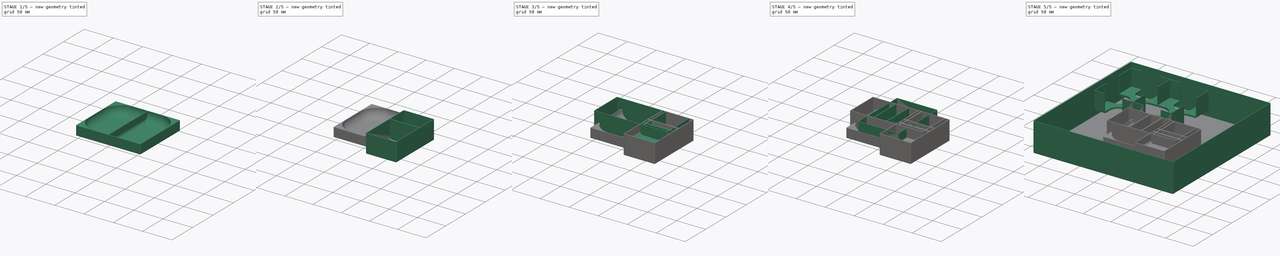
[diagram: build sequence overview — one tinted view per stage of 5, left to right]
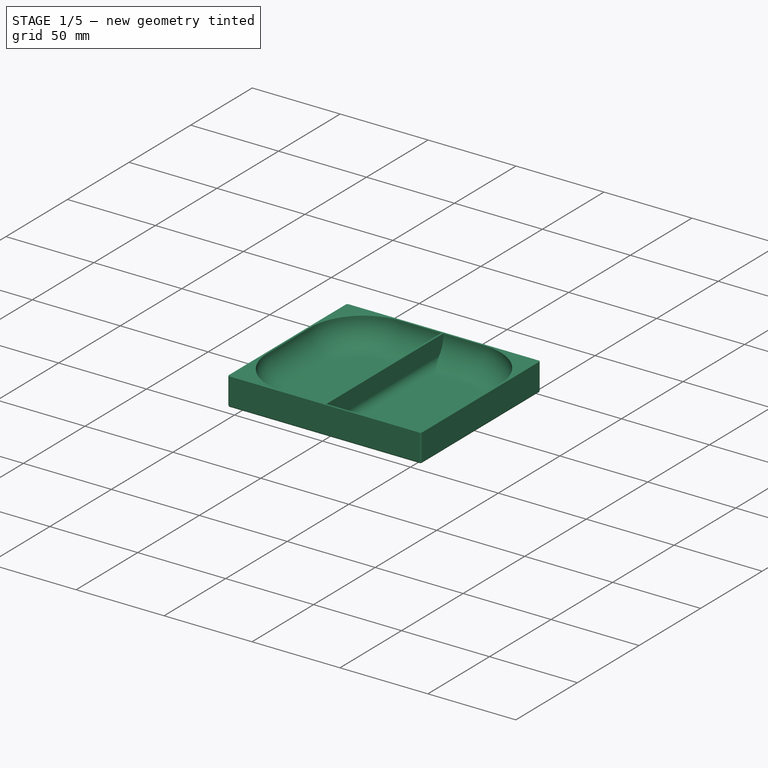
[diagram: stage 1 of 5 — iso view after this stage's code; geometry added in this stage tinted green]
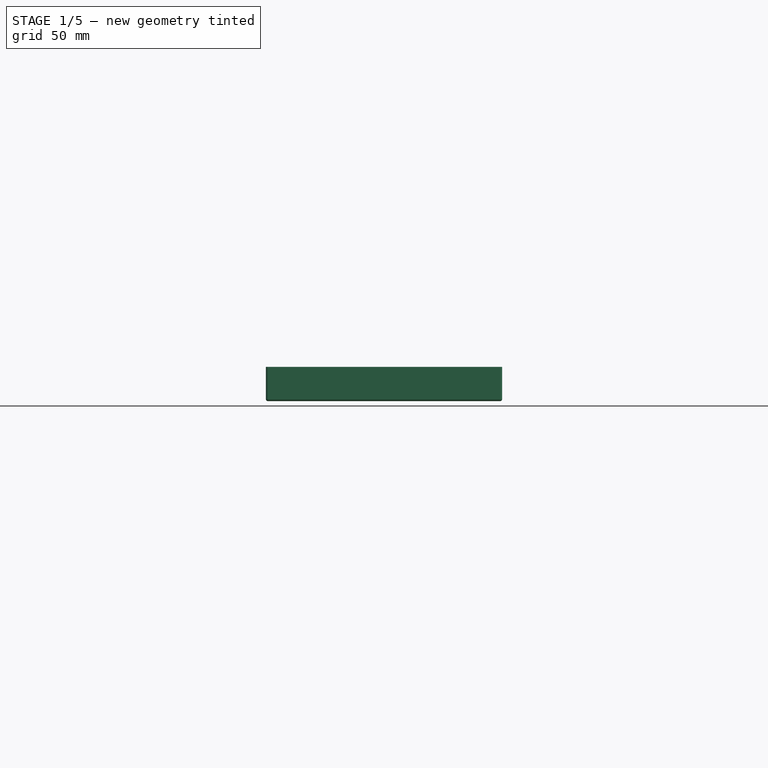
[diagram: stage 1 of 5 — front view after this stage's code; geometry added in this stage tinted green]
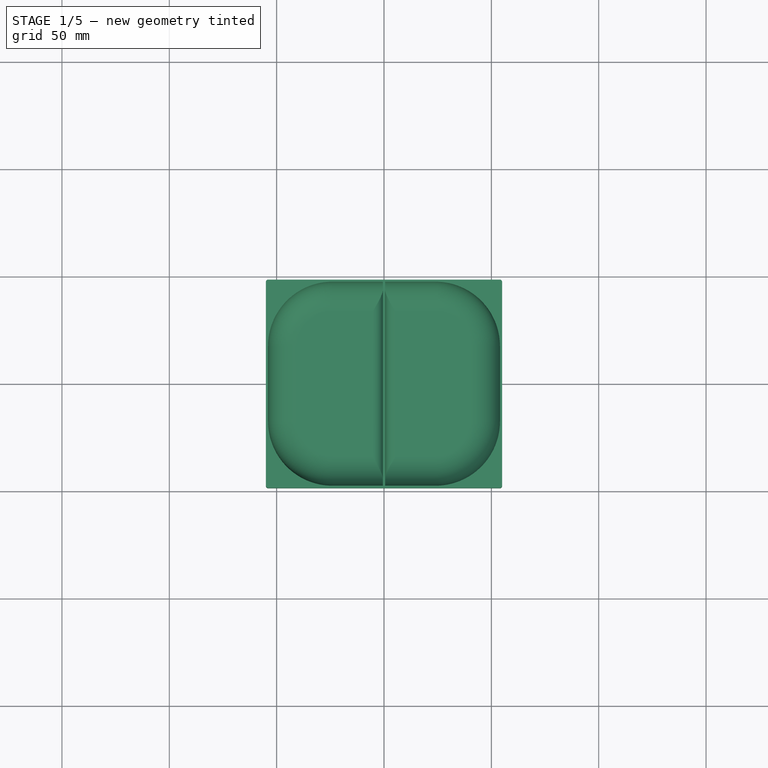
[diagram: stage 1 of 5 — top view after this stage's code; geometry added in this stage tinted green]
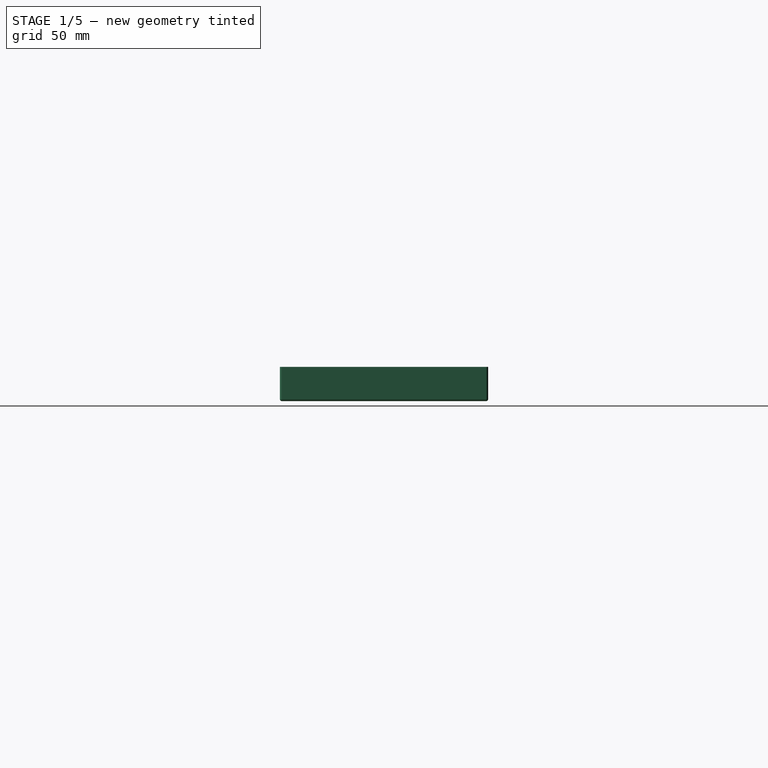
[diagram: stage 1 of 5 — right view after this stage's code; geometry added in this stage tinted green]
FCSTD DOCUMENT  (FreeCAD 0.20R29177 (Git))
Label: Horizons
License: All rights reserved
LicenseURL: http://en.wikipedia.org/wiki/All_rights_reserved
objects: Sketcher::SketchObject×16, PartDesign::Pad×15, PartDesign::Body×15, PartDesign::Plane×9, PartDesign::FeatureBase×9, PartDesign::Fillet×7, PartDesign::Thickness×6, App::Part×3, PartDesign::Pocket×1, PartDesign::Boolean×1, PartDesign::Mirrored×1
note: 109 computed .brp shape members not serialized (recipe doc carries the construction recipe); baked Part::Feature solids carry a one-line shape summary decoded from their .brp

FEATURE [PartDesign::Body] Body009  label="Energy-Thin"
  BaseFeature = -> Body007
  Group = -> [Clone004,DatumPlane005,Sketch011,Pad010]
  Origin = -> Origin012
  Placement = pos=(55,0,0) rot=(0,0,1;0rad)
  Tip = -> Pad010
FEATURE [Sketcher::SketchObject] Sketch012
  FullyConstrained = true
  MapMode = 5
  Support = -> [XY_Plane014]
  sketch-geometry (4):
    g0: LineSegment StartX=-54 StartY=47.5 StartZ=0 EndX=54 EndY=47.5 EndZ=0
    g1: LineSegment StartX=54 StartY=47.5 StartZ=0 EndX=54 EndY=-47.5 EndZ=0
    g2: LineSegment StartX=54 StartY=-47.5 StartZ=0 EndX=-54 EndY=-47.5 EndZ=0
    g3: LineSegment StartX=-54 StartY=-47.5 StartZ=0 EndX=-54 EndY=47.5 EndZ=0
  constraints (10):
    c: Coincident(g0,g1)
    c: Coincident(g1,g2)
    c: Coincident(g2,g3)
    c: Coincident(g3,g0)
    c: Horizontal(g2)
    c: Vertical(g1)
    c: DistanceX(g0,g0) = 108
    c: DistanceY(g3,g3) = 95
    c: Symmetric(g0,g0,g-2)
    c: Symmetric(g0,g2,g-1)
FEATURE [PartDesign::Pad] Pad011
  Direction = (0,0,1)
  Length = 15
  Length2 = 10
  Profile = -> Sketch012
  ReferenceAxis = -> Sketch012 [N_Axis]
  Type = 0
FEATURE [PartDesign::Thickness] Thickness005
  Base = -> Pad011 [Face6]
  BaseFeature = -> Pad011
  Intersection = false
  Join = 0
  Mode = 0
  SupportTransform = false
  Value = 1
FEATURE [PartDesign::Fillet] Fillet004
  Base = -> Thickness005 [Edge2,Edge5,Edge8,Edge1]
  BaseFeature = -> Thickness005
  Radius = 30
  SupportTransform = false
  UseAllEdges = false
FEATURE [PartDesign::Fillet] Fillet005
  Base = -> Fillet004 [Face2]
  BaseFeature = -> Fillet004
  Radius = 14
  SupportTransform = false
  UseAllEdges = false
FEATURE [PartDesign::FeatureBase] Clone007
  BaseFeature = -> Fillet005
FEATURE [PartDesign::Body] Body013  label="EnergyTray"
  BaseFeature = -> Fillet005
  Group = -> [Clone007,DatumPlane007,Sketch014,Pad013]
  Origin = -> Origin016
  Placement = pos=(70,77,0) rot=(0,0,1;0rad)
  Tip = -> Pad013
FEATURE [PartDesign::FeatureBase] Clone008
  BaseFeature = -> Thickness005
FEATURE [PartDesign::Plane] DatumPlane008
  Length = 124.832
  MapMode = 5
  Placement = pos=(0,47.5,0) rot=(1,0,0;1.5708rad)
  ResizeMode = 0
  Support = -> [Clone008]
  Width = 64.8324
FEATURE [Sketcher::SketchObject] Sketch015
  FullyConstrained = true
  MapMode = 5
  Placement = pos=(0,47.5,0) rot=(1,0,0;1.5708rad)
  Support = -> [DatumPlane008]
  sketch-geometry (4):
    g0: LineSegment StartX=-0.5 StartY=15 StartZ=0 EndX=0.5 EndY=15 EndZ=0
    g1: LineSegment StartX=0.5 StartY=15 StartZ=0 EndX=0.5 EndY=0 EndZ=0
    g2: LineSegment StartX=0.5 StartY=0 StartZ=0 EndX=-0.5 EndY=0 EndZ=0
    g3: LineSegment StartX=-0.5 StartY=0 StartZ=0 EndX=-0.5 EndY=15 EndZ=0
  constraints (11):
    c: Coincident(g0,g1)
    c: Coincident(g1,g2)
    c: Coincident(g2,g3)
    c: Coincident(g3,g0)
    c: Horizontal(g0)
    c: Vertical(g1)
    c: Vertical(g3)
    c: PointOnObject(g1,g-1)
    c: Symmetric(g2,g1,g-2)
    c: DistanceX(g0,g0) = 1
    c: DistanceY(g3,g3) = 15
FEATURE [PartDesign::Pad] Pad014
  BaseFeature = -> Clone008
  Direction = (0,-1,2e-16)
  Length = 10
  Length2 = 10
  Profile = -> Sketch015
  ReferenceAxis = -> Sketch015 [N_Axis]
  Type = 3
  UpToFace = -> Clone008 [Face3]
FEATURE [PartDesign::Fillet] Fillet006
  Base = -> Pad014 [Face2,Face20]
  BaseFeature = -> Pad014
  Radius = 5
  SupportTransform = false
  UseAllEdges = false
FEATURE [PartDesign::Body] Body014  label="BuildingsTray"
  Group = -> [Clone008,DatumPlane008,Sketch015,Pad014,Fillet006]
  Origin = -> Origin017
  Placement = pos=(70,77,16) rot=(0,0,1;0rad)
  Tip = -> Fillet006
FEATURE [App::Part] Part002  label="For Tokens"
  Group = -> [Body005,Body006,Body007,Body008,Body009,Body010,Body011,Body012,Body013,Body014]
  Origin = -> Origin007
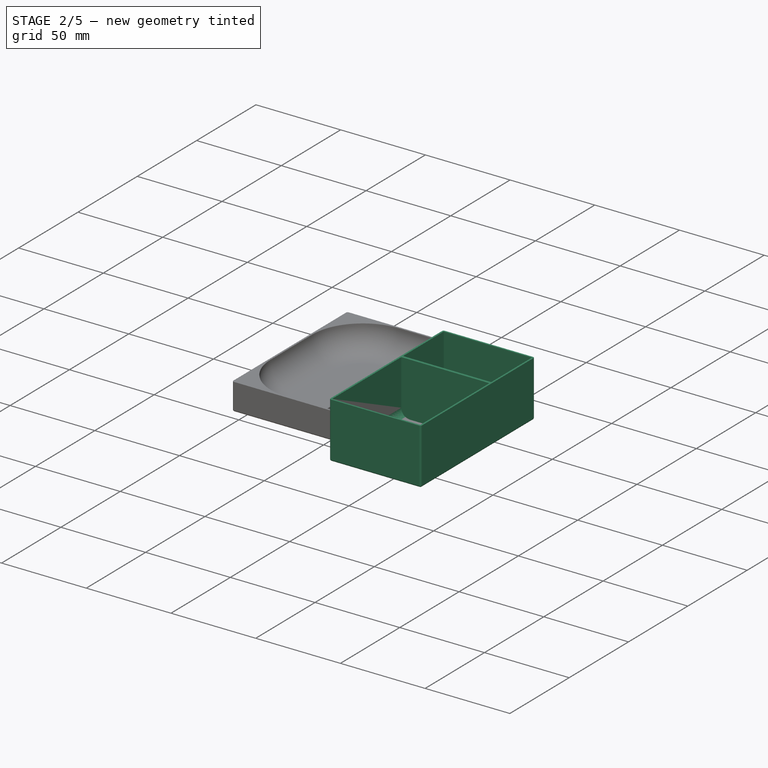
[diagram: stage 2 of 5 — iso view after this stage's code; geometry added in this stage tinted green]
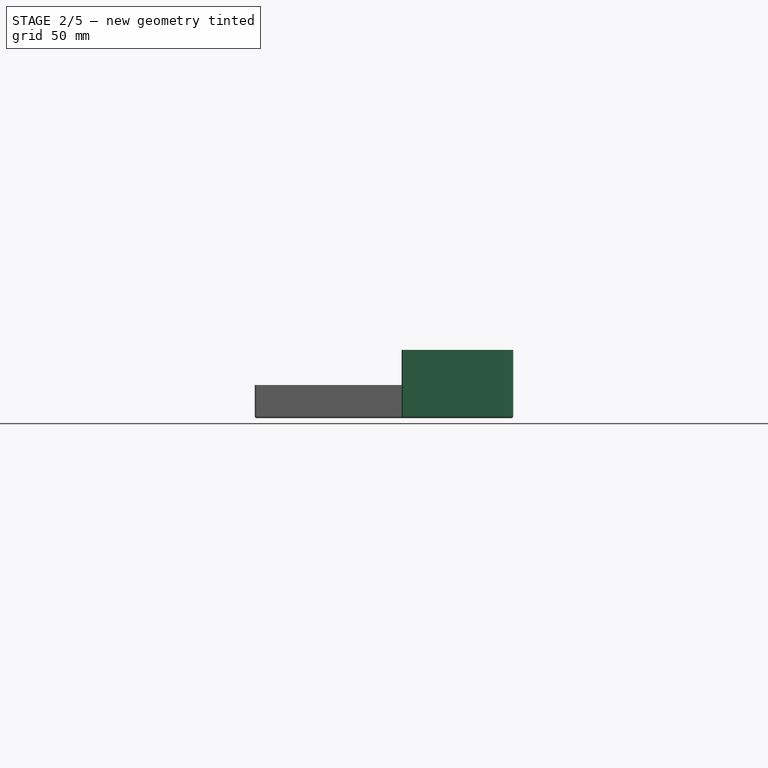
[diagram: stage 2 of 5 — front view after this stage's code; geometry added in this stage tinted green]
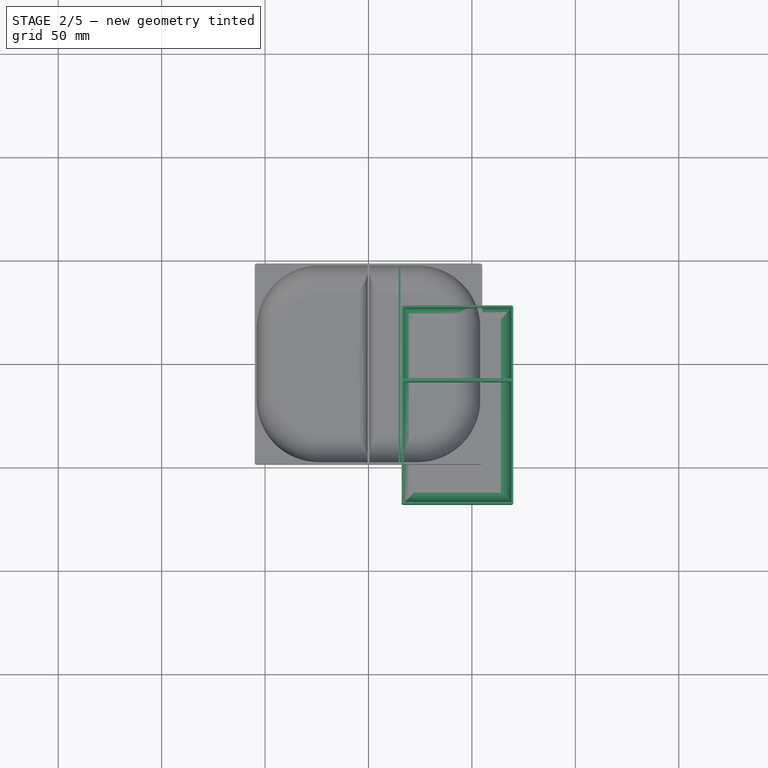
[diagram: stage 2 of 5 — top view after this stage's code; geometry added in this stage tinted green]
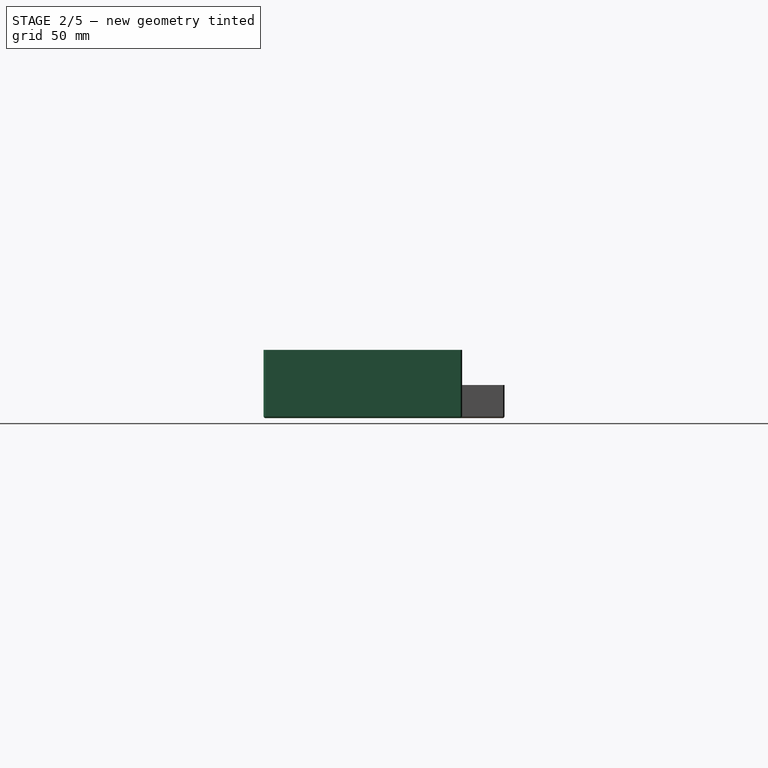
[diagram: stage 2 of 5 — right view after this stage's code; geometry added in this stage tinted green]
FEATURE [PartDesign::Body] Body006  label="Players"
  Group = -> [Sketch006,Pad005,Thickness003,DatumPlane002,Sketch007,Pad006,Mirrored,Fillet001]
  Origin = -> Origin009
  Placement = pos=(63,-97,0) rot=(0,0,1;0rad)
  Tip = -> Fillet001
FEATURE [Sketcher::SketchObject] Sketch008
  FullyConstrained = true
  MapMode = 5
  Support = -> [XY_Plane010]
  sketch-geometry (4):
    g0: LineSegment StartX=-26 StartY=47 StartZ=0 EndX=26 EndY=47 EndZ=0
    g1: LineSegment StartX=26 StartY=47 StartZ=0 EndX=26 EndY=-47 EndZ=0
    g2: LineSegment StartX=26 StartY=-47 StartZ=0 EndX=-26 EndY=-47 EndZ=0
    g3: LineSegment StartX=-26 StartY=-47 StartZ=0 EndX=-26 EndY=47 EndZ=0
  constraints (10):
    c: Coincident(g0,g1)
    c: Coincident(g1,g2)
    c: Coincident(g2,g3)
    c: Coincident(g3,g0)
    c: Horizontal(g2)
    c: Vertical(g1)
    c: Symmetric(g0,g0,g-2)
    c: Symmetric(g0,g2,g-1)
    c: DistanceX(g0,g0) = 52
    c: DistanceY(g3,g3) = 94
FEATURE [PartDesign::Pad] Pad007
  Direction = (0,0,1)
  Length = 32
  Length2 = 10
  Profile = -> Sketch008
  ReferenceAxis = -> Sketch008 [N_Axis]
  Type = 0
FEATURE [PartDesign::Thickness] Thickness004
  Base = -> Pad007 [Face6]
  BaseFeature = -> Pad007
  Intersection = false
  Join = 0
  Mode = 0
  SupportTransform = false
  Value = 1
FEATURE [PartDesign::Fillet] Fillet002
  Base = -> Thickness004 [Face5,Face17]
  BaseFeature = -> Thickness004
  Radius = 5
  SupportTransform = false
  UseAllEdges = false
FEATURE [PartDesign::FeatureBase] Clone004
  BaseFeature = -> Body007
  Placement = pos=(43,-20,0) rot=(0,0,1;0rad)
FEATURE [PartDesign::Body] Body010  label="Buildings-Thin"
  BaseFeature = -> Body007
  Group = -> [Clone005,DatumPlane004,Sketch010,Pad009]
  Origin = -> Origin013
  Placement = pos=(55,97,0) rot=(0,0,1;0rad)
  Tip = -> Pad009
FEATURE [PartDesign::Plane] DatumPlane005
  Length = 110.795
  MapMode = 5
  Placement = pos=(17,-20,0) rot=(0.57735,0.57735,0.57735;2.0944rad)
  ResizeMode = 0
  Support = -> [Clone004]
  Width = 71.7946
FEATURE [Sketcher::SketchObject] Sketch011
  AttachmentOffset = pos=(12,0,0) rot=(0,0,1;0rad)
  FullyConstrained = true
  MapMode = 5
  Placement = pos=(17,-8,0) rot=(0.57735,0.57735,0.57735;2.0944rad)
  Support = -> [DatumPlane005]
  sketch-geometry (4):
    g0: LineSegment StartX=-0.75 StartY=32 StartZ=0 EndX=0.75 EndY=32 EndZ=0
    g1: LineSegment StartX=0.75 StartY=32 StartZ=0 EndX=0.75 EndY=0 EndZ=0
    g2: LineSegment StartX=0.75 StartY=0 StartZ=0 EndX=-0.75 EndY=0 EndZ=0
    g3: LineSegment StartX=-0.75 StartY=0 StartZ=0 EndX=-0.75 EndY=32 EndZ=0
  constraints (11):
    c: Coincident(g0,g1)
    c: Coincident(g1,g2)
    c: Coincident(g2,g3)
    c: Coincident(g3,g0)
    c: Horizontal(g0)
    c: Vertical(g1)
    c: Vertical(g3)
    c: PointOnObject(g1,g-1)
    c: DistanceX(g0,g0) = 1.5
    c: DistanceY(g1,g1) = 32
    c: Symmetric(g2,g1,g-2)
FEATURE [PartDesign::Pad] Pad010
  BaseFeature = -> Clone004
  Direction = (1,0,0)
  Length = 10
  Length2 = 10
  Placement = pos=(43,-20,0) rot=(0,0,1;0rad)
  Profile = -> Sketch011
  ReferenceAxis = -> Sketch011 [N_Axis]
  Type = 3
  UpToFace = -> Clone004 [Face5]
FEATURE [PartDesign::Body] Body011  label="Dahan"
  Group = -> [Sketch012,Pad011,Thickness005,Fillet004,Fillet005]
  Origin = -> Origin014
  Placement = pos=(70,-20,0) rot=(0,0,1;0rad)
  Tip = -> Fillet005
FEATURE [PartDesign::FeatureBase] Clone006
  BaseFeature = -> Fillet005
FEATURE [PartDesign::Plane] DatumPlane006
  Length = 124.832
  MapMode = 5
  Placement = pos=(0,47.5,0) rot=(1,0,0;1.5708rad)
  ResizeMode = 0
  Support = -> [Clone006]
  Width = 64.8324
FEATURE [Sketcher::SketchObject] Sketch013
  AttachmentOffset = pos=(15,0,0) rot=(0,0,1;0rad)
  FullyConstrained = true
  MapMode = 5
  Placement = pos=(15,47.5,0) rot=(1,0,0;1.5708rad)
  Support = -> [DatumPlane006]
  sketch-geometry (4):
    g0: LineSegment StartX=-0.5 StartY=15 StartZ=0 EndX=0.5 EndY=15 EndZ=0
    g1: LineSegment StartX=0.5 StartY=15 StartZ=0 EndX=0.5 EndY=0 EndZ=0
    g2: LineSegment StartX=0.5 StartY=0 StartZ=0 EndX=-0.5 EndY=0 EndZ=0
    g3: LineSegment StartX=-0.5 StartY=0 StartZ=0 EndX=-0.5 EndY=15 EndZ=0
  constraints (11):
    c: Coincident(g0,g1)
    c: Coincident(g1,g2)
    c: Coincident(g2,g3)
    c: Coincident(g3,g0)
    c: Horizontal(g0)
    c: Vertical(g1)
    c: Vertical(g3)
    c: PointOnObject(g1,g-1)
    c: Symmetric(g2,g1,g-2)
    c: DistanceX(g2,g2) = 1
    c: DistanceY(g3,g3) = 15
FEATURE [PartDesign::Pad] Pad012
  BaseFeature = -> Clone006
  Direction = (0,-1,2e-16)
  Length = 10
  Length2 = 10
  Profile = -> Sketch013
  ReferenceAxis = -> Sketch013 [N_Axis]
  Type = 3
  UpToFace = -> Clone006 [Face20]
FEATURE [PartDesign::Body] Body012  label="Explorers"
  BaseFeature = -> Fillet005
  Group = -> [Clone006,DatumPlane006,Sketch013,Pad012]
  Origin = -> Origin015
  Placement = pos=(70,-20,16) rot=(0,0,1;0rad)
  Tip = -> Pad012
FEATURE [PartDesign::Plane] DatumPlane007
  Length = 124.832
  MapMode = 5
  Placement = pos=(0,47.5,0) rot=(1,0,0;1.5708rad)
  ResizeMode = 0
  Support = -> [Clone007]
  Width = 64.8324
FEATURE [Sketcher::SketchObject] Sketch014
  FullyConstrained = true
  MapMode = 5
  Placement = pos=(0,47.5,0) rot=(1,0,0;1.5708rad)
  Support = -> [DatumPlane007]
  sketch-geometry (4):
    g0: LineSegment StartX=-0.5 StartY=0 StartZ=0 EndX=0.5 EndY=0 EndZ=0
    g1: LineSegment StartX=0.5 StartY=0 StartZ=0 EndX=0.5 EndY=15 EndZ=0
    g2: LineSegment StartX=0.5 StartY=15 StartZ=0 EndX=-0.5 EndY=15 EndZ=0
    g3: LineSegment StartX=-0.5 StartY=15 StartZ=0 EndX=-0.5 EndY=0 EndZ=0
  constraints (11):
    c: Coincident(g0,g1)
    c: Coincident(g1,g2)
    c: Coincident(g2,g3)
    c: Coincident(g3,g0)
    c: Horizontal(g2)
    c: Vertical(g1)
    c: Vertical(g3)
    c: PointOnObject(g0,g-1)
    c: Symmetric(g0,g0,g-2)
    c: DistanceX(g0,g0) = 1
    c: DistanceY(g3,g3) = 15
FEATURE [PartDesign::Pad] Pad013
  BaseFeature = -> Clone007
  Direction = (0,-1,2e-16)
  Length = 10
  Length2 = 10
  Profile = -> Sketch014
  ReferenceAxis = -> Sketch014 [N_Axis]
  Type = 3
  UpToFace = -> Clone007 [Face12]
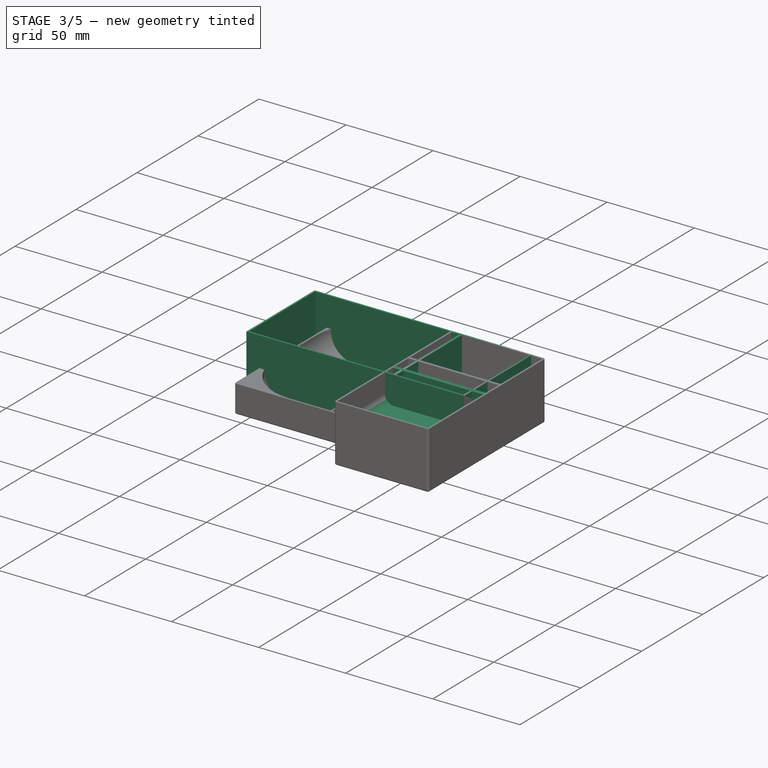
[diagram: stage 3 of 5 — iso view after this stage's code; geometry added in this stage tinted green]
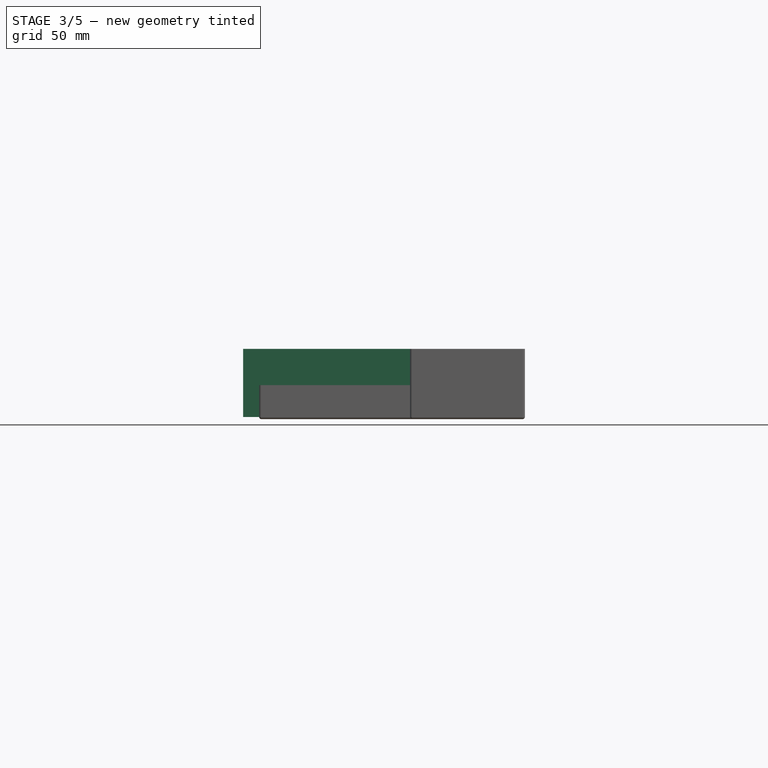
[diagram: stage 3 of 5 — front view after this stage's code; geometry added in this stage tinted green]
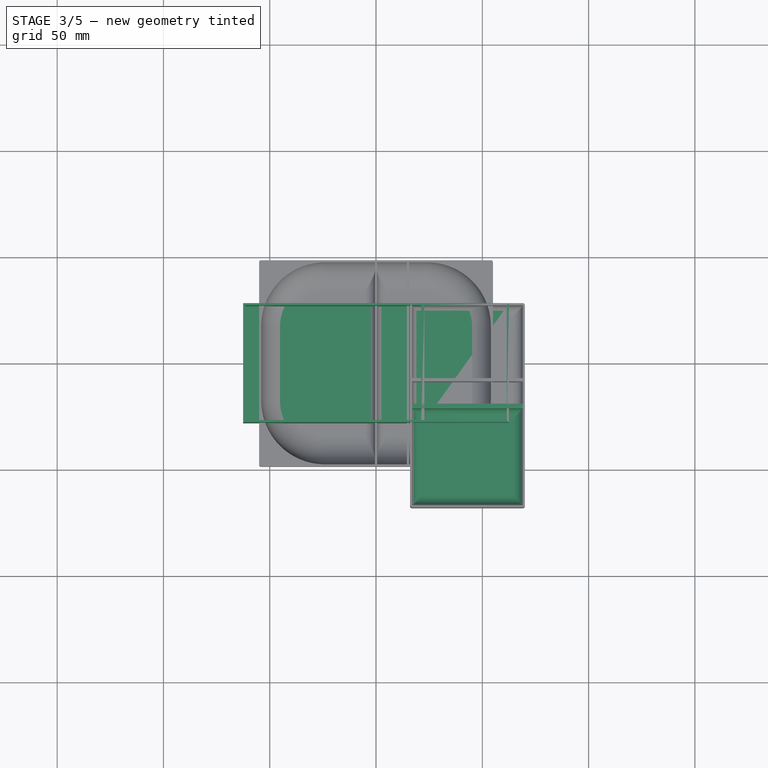
[diagram: stage 3 of 5 — top view after this stage's code; geometry added in this stage tinted green]
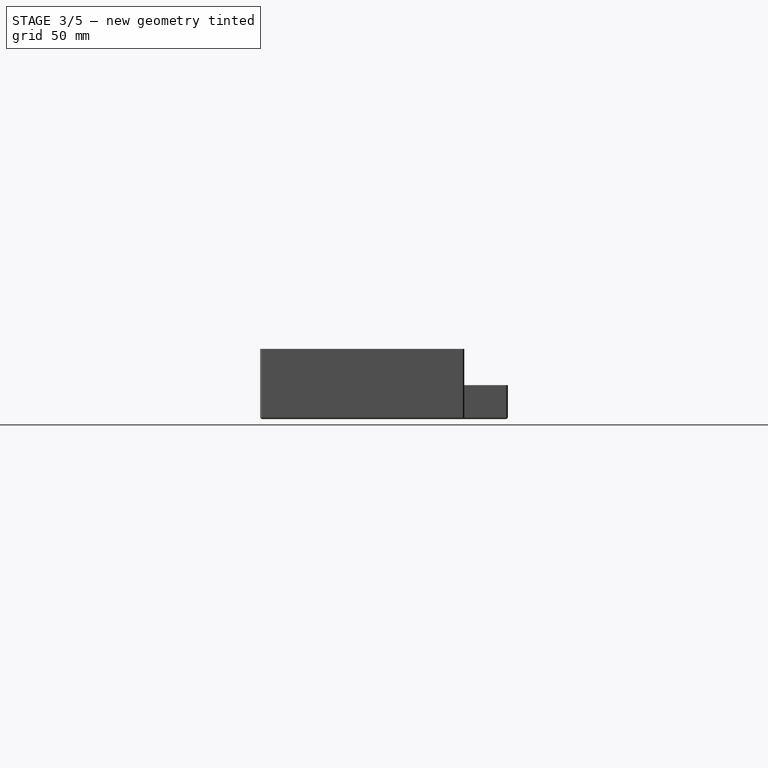
[diagram: stage 3 of 5 — right view after this stage's code; geometry added in this stage tinted green]
FEATURE [PartDesign::Body] Body005  label="Blight/Fear"
  Group = -> [Sketch004,Pad003,Thickness002,DatumPlane001,Sketch005,Pad004,Fillet]
  Origin = -> Origin008
  Placement = pos=(-63,-97,0) rot=(0,0,1;0rad)
  Tip = -> Fillet
FEATURE [Sketcher::SketchObject] Sketch006
  FullyConstrained = true
  MapMode = 5
  Support = -> [XY_Plane009]
  sketch-geometry (4):
    g0: LineSegment StartX=-62.5 StartY=28 StartZ=0 EndX=62.5 EndY=28 EndZ=0
    g1: LineSegment StartX=62.5 StartY=28 StartZ=0 EndX=62.5 EndY=-28 EndZ=0
    g2: LineSegment StartX=62.5 StartY=-28 StartZ=0 EndX=-62.5 EndY=-28 EndZ=0
    g3: LineSegment StartX=-62.5 StartY=-28 StartZ=0 EndX=-62.5 EndY=28 EndZ=0
  constraints (10):
    c: Coincident(g0,g1)
    c: Coincident(g1,g2)
    c: Coincident(g2,g3)
    c: Coincident(g3,g0)
    c: Horizontal(g2)
    c: Vertical(g1)
    c: DistanceY(g3,g3) = 56
    c: DistanceX(g0,g0) = 125
    c: Symmetric(g0,g0,g-2)
    c: Symmetric(g0,g2,g-1)
FEATURE [PartDesign::Pad] Pad005
  Direction = (0,0,1)
  Length = 32
  Length2 = 10
  Profile = -> Sketch006
  ReferenceAxis = -> Sketch006 [N_Axis]
  Type = 0
FEATURE [PartDesign::Thickness] Thickness003
  Base = -> Pad005 [Face6]
  BaseFeature = -> Pad005
  Intersection = false
  Join = 0
  Mode = 0
  Reversed = true
  SupportTransform = false
  Value = 1
FEATURE [PartDesign::Plane] DatumPlane002
  Length = 141.882
  MapMode = 5
  Placement = pos=(0,27,0) rot=(1,0,0;1.5708rad)
  ResizeMode = 0
  Support = -> [Thickness003]
  Width = 73.8819
FEATURE [Sketcher::SketchObject] Sketch007
  AttachmentOffset = pos=(22,0,0) rot=(0,0,1;0rad)
  FullyConstrained = true
  MapMode = 5
  Placement = pos=(22,27,0) rot=(1,0,0;1.5708rad)
  Support = -> [DatumPlane002]
  sketch-geometry (4):
    g0: LineSegment StartX=-0.75 StartY=32 StartZ=0 EndX=0.75 EndY=32 EndZ=0
    g1: LineSegment StartX=0.75 StartY=32 StartZ=0 EndX=0.75 EndY=0 EndZ=0
    g2: LineSegment StartX=0.75 StartY=0 StartZ=0 EndX=-0.75 EndY=0 EndZ=0
    g3: LineSegment StartX=-0.75 StartY=0 StartZ=0 EndX=-0.75 EndY=32 EndZ=0
  constraints (11):
    c: Coincident(g0,g1)
    c: Coincident(g1,g2)
    c: Coincident(g2,g3)
    c: Coincident(g3,g0)
    c: Horizontal(g2)
    c: Vertical(g1)
    c: Vertical(g3)
    c: PointOnObject(g1,g-1)
    c: DistanceY(g3,g3) = 32
    c: DistanceX(g0,g0) = 1.5
    c: Symmetric(g0,g0,g-2)
FEATURE [PartDesign::Pad] Pad006
  BaseFeature = -> Thickness003
  Direction = (0,-1,2e-16)
  Length = 10
  Length2 = 10
  Profile = -> Sketch007
  ReferenceAxis = -> Sketch007 [N_Axis]
  Type = 3
  UpToFace = -> Thickness003 [Face9]
FEATURE [PartDesign::Body] Body007  label="Dahan-Thin"
  Group = -> [Sketch008,Pad007,Thickness004,Fillet002]
  Origin = -> Origin010
  Placement = pos=(43,-20,0) rot=(0,0,1;0rad)
  Tip = -> Fillet002
FEATURE [PartDesign::FeatureBase] Clone003
  BaseFeature = -> Body007
  Placement = pos=(43,-20,0) rot=(0,0,1;0rad)
FEATURE [PartDesign::FeatureBase] Clone005
  BaseFeature = -> Body007
  Placement = pos=(43,-20,0) rot=(0,0,1;0rad)
FEATURE [PartDesign::Plane] DatumPlane003
  Length = 110.795
  MapMode = 5
  Placement = pos=(17,-20,0) rot=(0.57735,0.57735,0.57735;2.0944rad)
  ResizeMode = 0
  Support = -> [Clone003]
  Width = 71.7946
FEATURE [Sketcher::SketchObject] Sketch009
  FullyConstrained = false
  MapMode = 5
  Placement = pos=(17,-20,0) rot=(0.57735,0.57735,0.57735;2.0944rad)
  Support = -> [DatumPlane003]
  sketch-geometry (7):
    g0: LineSegment StartX=-47 StartY=16 StartZ=0 EndX=-47 EndY=0 EndZ=0
    g1: LineSegment StartX=-47 StartY=0 StartZ=0 EndX=0 EndY=0 EndZ=0
    g2: LineSegment StartX=0 StartY=0 StartZ=0 EndX=0 EndY=16 EndZ=0
    g3: LineSegment StartX=-1.5 StartY=16 StartZ=0 EndX=-1.5 EndY=32 EndZ=0
    g4: LineSegment StartX=-1.5 StartY=32 StartZ=0 EndX=0 EndY=32 EndZ=0
    g5: LineSegment StartX=-1.5 StartY=16 StartZ=0 EndX=-47 EndY=16 EndZ=0
    g6: LineSegment StartX=0 StartY=32 StartZ=0 EndX=0 EndY=16 EndZ=0
  constraints (18):
    c: Coincident(g0,g1)
    c: Coincident(g1,g2)
    c: Horizontal(g1)
    c: Vertical(g0)
    c: Vertical(g2)
    c: DistanceY(g2,g2) = 16
    c: Coincident(g1,g-1)
    c: DistanceX(g0,g2) = 47
    c: Coincident(g3,g4)
    c: Horizontal(g4)
    c: Vertical(g3)
    c: DistanceY(g2,g4) = 16
    c: DistanceX(g4,g4) = 1.5
    c: Coincident(g5,g0)
    c: Horizontal(g5)
    c: Coincident(g6,g4)
    c: Coincident(g6,g2)
    c: Vertical(g6)
FEATURE [PartDesign::Pad] Pad008
  BaseFeature = -> Clone003
  Direction = (1,0,0)
  Length = 10
  Length2 = 10
  Placement = pos=(43,-20,0) rot=(0,0,1;0rad)
  Profile = -> Sketch009
  ReferenceAxis = -> Sketch009 [N_Axis]
  Type = 3
  UpToFace = -> Clone003 [Face5]
FEATURE [PartDesign::Fillet] Fillet003
  Base = -> Pad008 [Face24]
  BaseFeature = -> Pad008
  Placement = pos=(43,-20,0) rot=(0,0,1;0rad)
  Radius = 5
  SupportTransform = false
  UseAllEdges = false
FEATURE [PartDesign::Body] Body008  label="Explorers-Thin"
  BaseFeature = -> Body007
  Group = -> [Clone003,DatumPlane003,Sketch009,Pad008,Fillet003]
  Origin = -> Origin011
  Placement = pos=(0,97,0) rot=(0,0,1;0rad)
  Tip = -> Fillet003
FEATURE [PartDesign::Plane] DatumPlane004
  Length = 110.795
  MapMode = 5
  Placement = pos=(17,-20,0) rot=(0.57735,0.57735,0.57735;2.0944rad)
  ResizeMode = 0
  Support = -> [Clone005]
  Width = 71.7946
FEATURE [Sketcher::SketchObject] Sketch010
  FullyConstrained = true
  MapMode = 5
  Placement = pos=(17,-20,0) rot=(0.57735,0.57735,0.57735;2.0944rad)
  Support = -> [DatumPlane004]
  sketch-geometry (4):
    g0: LineSegment StartX=-0.75 StartY=32 StartZ=0 EndX=0.75 EndY=32 EndZ=0
    g1: LineSegment StartX=0.75 StartY=32 StartZ=0 EndX=0.75 EndY=0 EndZ=0
    g2: LineSegment StartX=0.75 StartY=0 StartZ=0 EndX=-0.75 EndY=0 EndZ=0
    g3: LineSegment StartX=-0.75 StartY=0 StartZ=0 EndX=-0.75 EndY=32 EndZ=0
  constraints (11):
    c: Coincident(g0,g1)
    c: Coincident(g1,g2)
    c: Coincident(g2,g3)
    c: Coincident(g3,g0)
    c: Horizontal(g0)
    c: Vertical(g1)
    c: Vertical(g3)
    c: PointOnObject(g1,g-1)
    c: DistanceY(g1,g1) = 32
    c: DistanceX(g0,g0) = 1.5
    c: Symmetric(g2,g1,g-2)
FEATURE [PartDesign::Pad] Pad009
  BaseFeature = -> Clone005
  Direction = (1,0,0)
  Length = 10
  Length2 = 10
  Placement = pos=(43,-20,0) rot=(0,0,1;0rad)
  Profile = -> Sketch010
  ReferenceAxis = -> Sketch010 [N_Axis]
  Type = 3
  UpToFace = -> Clone005 [Face5]
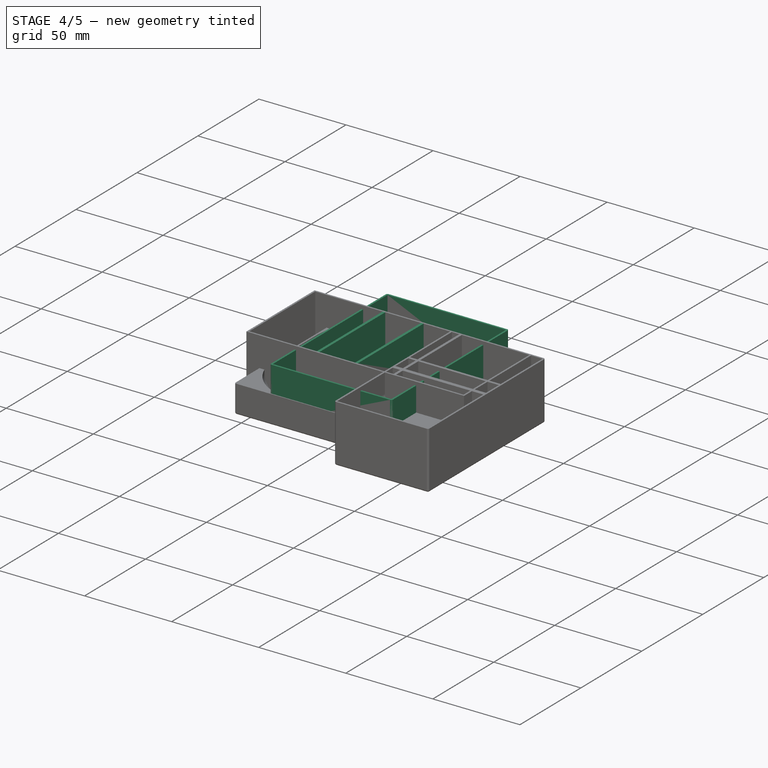
[diagram: stage 4 of 5 — iso view after this stage's code; geometry added in this stage tinted green]
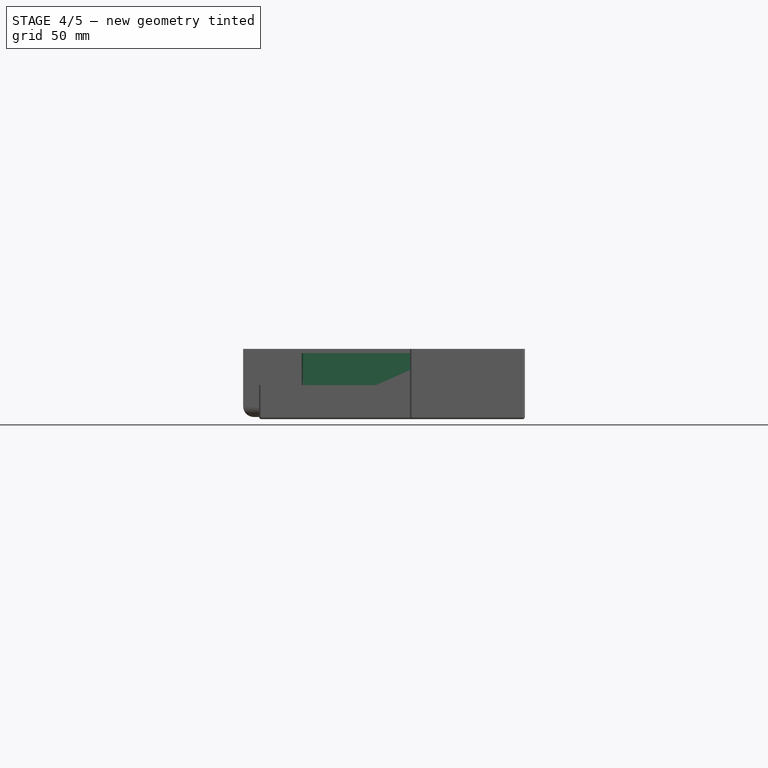
[diagram: stage 4 of 5 — front view after this stage's code; geometry added in this stage tinted green]
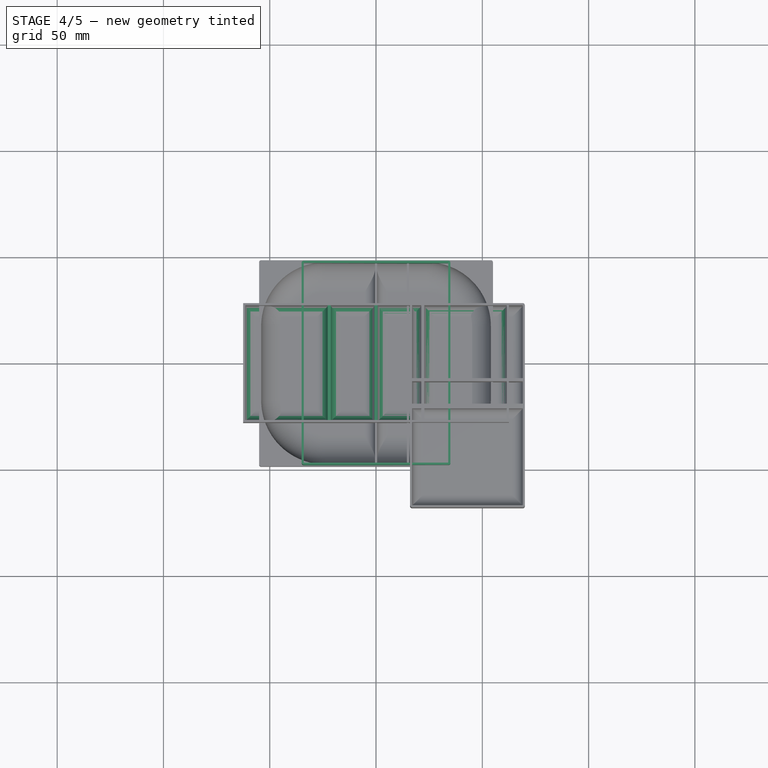
[diagram: stage 4 of 5 — top view after this stage's code; geometry added in this stage tinted green]
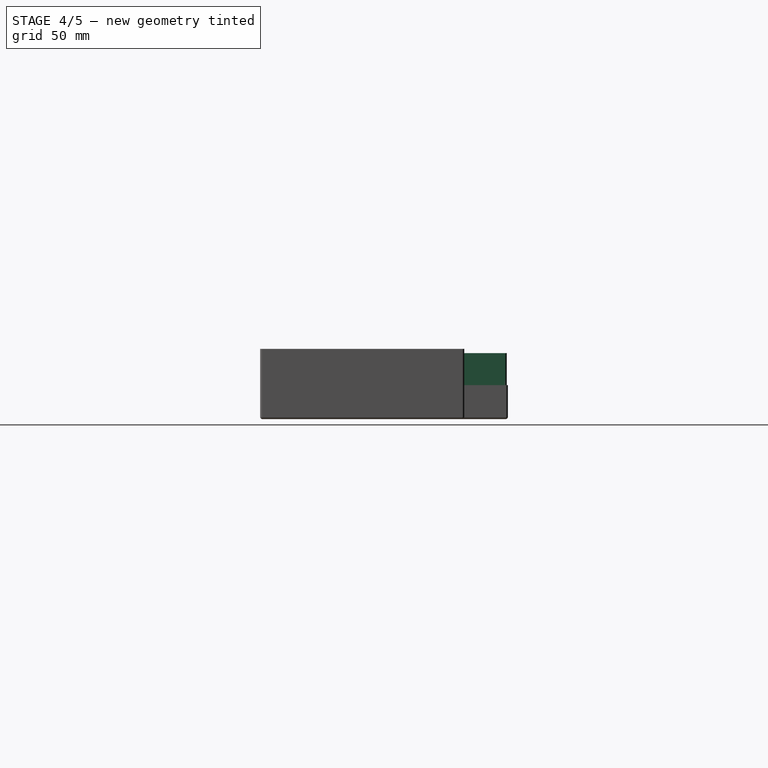
[diagram: stage 4 of 5 — right view after this stage's code; geometry added in this stage tinted green]
FEATURE [PartDesign::Body] Body  label="Box"
  Group = -> [Sketch,Pad,Thickness]
  Origin = -> Origin001
  Tip = -> Thickness
FEATURE [Sketcher::SketchObject] Sketch001
  FullyConstrained = true
  MapMode = 5
  Support = -> [XY_Plane003]
  sketch-geometry (4):
    g0: LineSegment StartX=-34 StartY=47 StartZ=0 EndX=34 EndY=47 EndZ=0
    g1: LineSegment StartX=34 StartY=47 StartZ=0 EndX=34 EndY=-47 EndZ=0
    g2: LineSegment StartX=34 StartY=-47 StartZ=0 EndX=-34 EndY=-47 EndZ=0
    g3: LineSegment StartX=-34 StartY=-47 StartZ=0 EndX=-34 EndY=47 EndZ=0
  constraints (10):
    c: Coincident(g0,g1)
    c: Coincident(g1,g2)
    c: Coincident(g2,g3)
    c: Coincident(g3,g0)
    c: Horizontal(g2)
    c: Vertical(g1)
    c: Symmetric(g0,g0,g-2)
    c: Symmetric(g0,g2,g-1)
    c: DistanceX(g0,g0) = 68
    c: DistanceY(g3,g3) = 94
FEATURE [PartDesign::Pad] Pad001
  Direction = (0,0,1)
  Length = 30
  Length2 = 10
  Profile = -> Sketch001
  ReferenceAxis = -> Sketch001 [N_Axis]
  Type = 0
FEATURE [PartDesign::Thickness] Thickness001
  Base = -> Pad001 [Face6]
  BaseFeature = -> Pad001
  Intersection = false
  Join = 0
  Mode = 0
  SupportTransform = false
  Value = 1
FEATURE [PartDesign::Body] Body004  label="Card Clone"
  BaseFeature = -> Body002
  Group = -> [Clone002]
  Origin = -> Origin006
  Placement = pos=(0,-97,-11) rot=(0,0,1;0rad)
  Tip = -> Clone002
FEATURE [App::Part] Part  label="Fit Example"
  Group = -> [Body,Body004]
  Origin = -> Origin
FEATURE [Sketcher::SketchObject] Sketch004
  FullyConstrained = true
  MapMode = 5
  Support = -> [XY_Plane008]
  sketch-geometry (4):
    g0: LineSegment StartX=-62.5 StartY=28 StartZ=0 EndX=62.5 EndY=28 EndZ=0
    g1: LineSegment StartX=62.5 StartY=28 StartZ=0 EndX=62.5 EndY=-28 EndZ=0
    g2: LineSegment StartX=62.5 StartY=-28 StartZ=0 EndX=-62.5 EndY=-28 EndZ=0
    g3: LineSegment StartX=-62.5 StartY=-28 StartZ=0 EndX=-62.5 EndY=28 EndZ=0
  constraints (10):
    c: Coincident(g0,g1)
    c: Coincident(g1,g2)
    c: Coincident(g2,g3)
    c: Coincident(g3,g0)
    c: Horizontal(g2)
    c: Vertical(g1)
    c: DistanceY(g3,g3) = 56
    c: DistanceX(g0,g0) = 125
    c: Symmetric(g0,g2,g-1)
    c: Symmetric(g0,g0,g-2)
FEATURE [PartDesign::Pad] Pad003
  Direction = (0,0,1)
  Length = 32
  Length2 = 10
  Profile = -> Sketch004
  ReferenceAxis = -> Sketch004 [N_Axis]
  Type = 0
FEATURE [PartDesign::Thickness] Thickness002
  Base = -> Pad003 [Face6]
  BaseFeature = -> Pad003
  Intersection = false
  Join = 0
  Mode = 0
  Reversed = true
  SupportTransform = false
  Value = 1
FEATURE [PartDesign::Plane] DatumPlane001
  Length = 141.882
  MapMode = 5
  Placement = pos=(0,27,0) rot=(1,0,0;1.5708rad)
  ResizeMode = 0
  Support = -> [Thickness002]
  Width = 73.8819
FEATURE [Sketcher::SketchObject] Sketch005
  FullyConstrained = true
  MapMode = 5
  Placement = pos=(0,27,0) rot=(1,0,0;1.5708rad)
  Support = -> [DatumPlane001]
  sketch-geometry (4):
    g0: LineSegment StartX=-0.75 StartY=32 StartZ=0 EndX=0.75 EndY=32 EndZ=0
    g1: LineSegment StartX=0.75 StartY=32 StartZ=0 EndX=0.75 EndY=0 EndZ=0
    g2: LineSegment StartX=0.75 StartY=0 StartZ=0 EndX=-0.75 EndY=-4e-16 EndZ=0
    g3: LineSegment StartX=-0.75 StartY=-4e-16 StartZ=0 EndX=-0.75 EndY=32 EndZ=0
  constraints (11):
    c: Coincident(g0,g1)
    c: Coincident(g1,g2)
    c: Coincident(g2,g3)
    c: Coincident(g3,g0)
    c: Horizontal(g0)
    c: Vertical(g1)
    c: Vertical(g3)
    c: PointOnObject(g1,g-1)
    c: Symmetric(g2,g1,g-2)
    c: DistanceY(g3,g3) = 32
    c: DistanceX(g0,g0) = 1.5
FEATURE [PartDesign::Pad] Pad004
  BaseFeature = -> Thickness002
  Direction = (0,-1,2e-16)
  Length = 10
  Length2 = 10
  Profile = -> Sketch005
  ReferenceAxis = -> Sketch005 [N_Axis]
  Type = 3
  UpToFace = -> Thickness002 [Face9]
FEATURE [PartDesign::Fillet] Fillet
  Base = -> Pad004 [Face18,Face15,Face4]
  BaseFeature = -> Pad004
  Radius = 5
  SupportTransform = false
  UseAllEdges = false
FEATURE [PartDesign::Mirrored] Mirrored
  BaseFeature = -> Pad006
  MirrorPlane = -> YZ_Plane009
  Originals = -> [Pad006]
FEATURE [PartDesign::Fillet] Fillet001
  Base = -> Mirrored [Face25,Face22,Face19,Face4]
  BaseFeature = -> Mirrored
  Radius = 5
  SupportTransform = false
  UseAllEdges = false
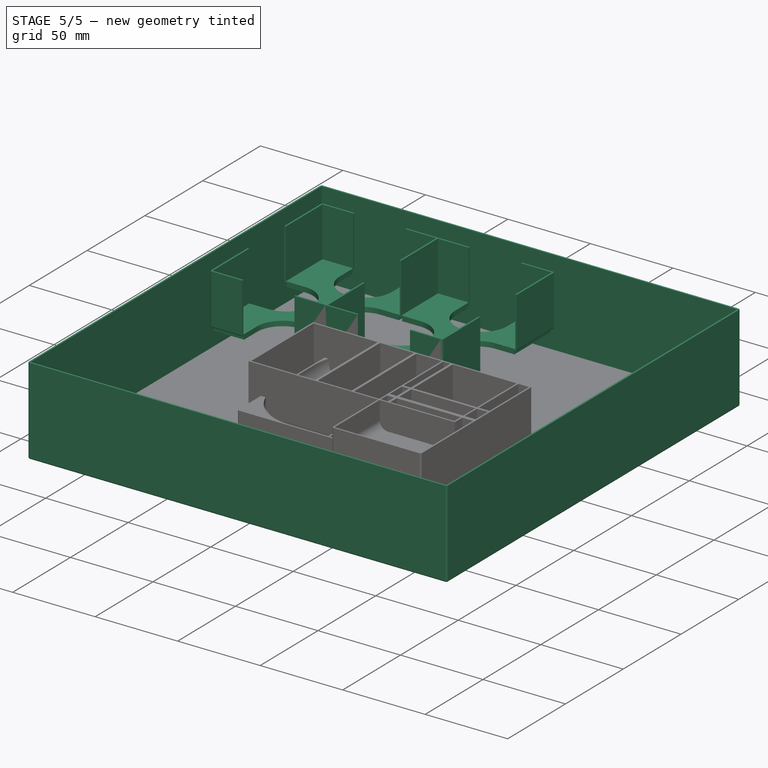
[diagram: stage 5 of 5 — iso view after this stage's code; geometry added in this stage tinted green]
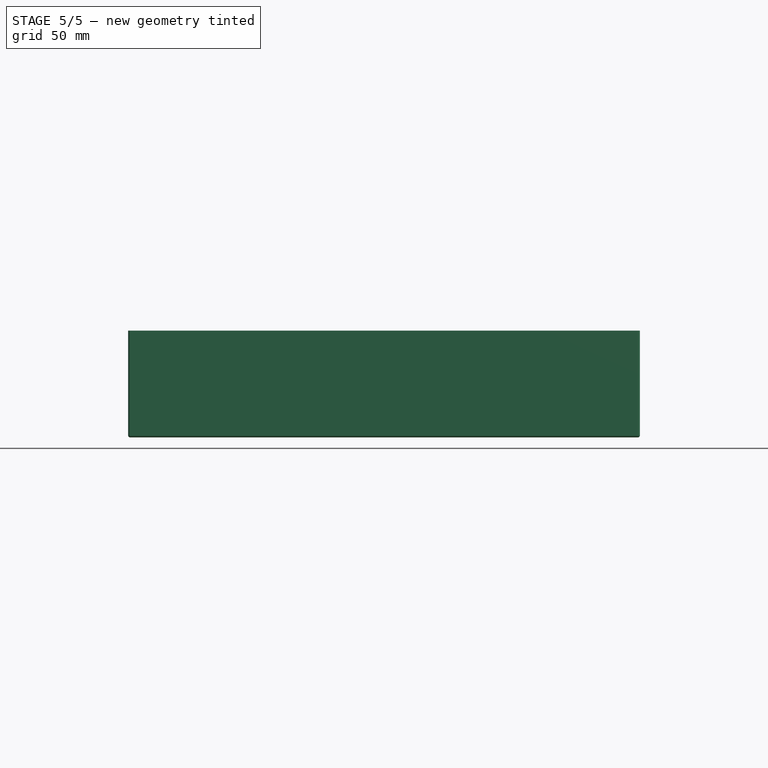
[diagram: stage 5 of 5 — front view after this stage's code; geometry added in this stage tinted green]
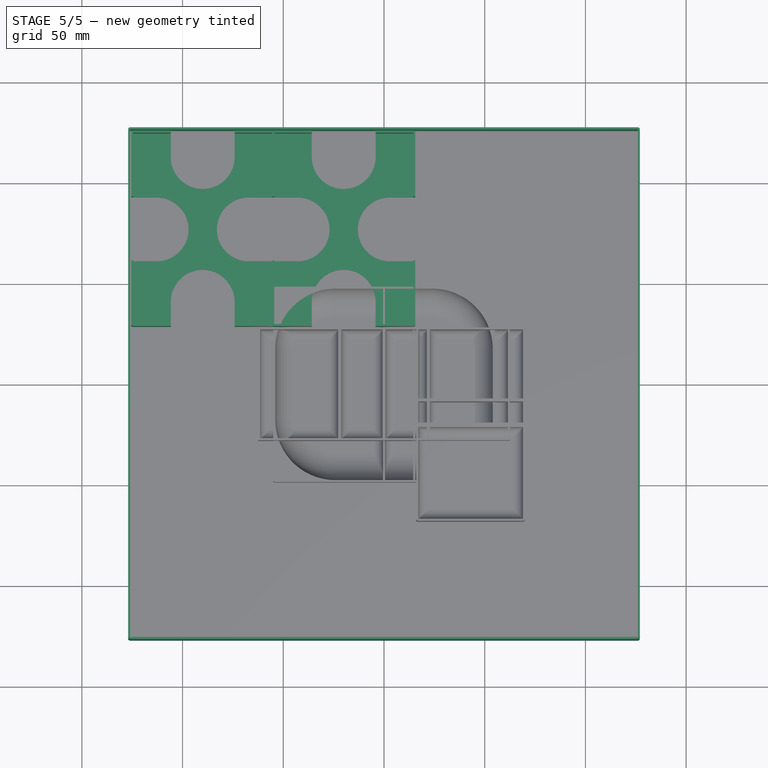
[diagram: stage 5 of 5 — top view after this stage's code; geometry added in this stage tinted green]
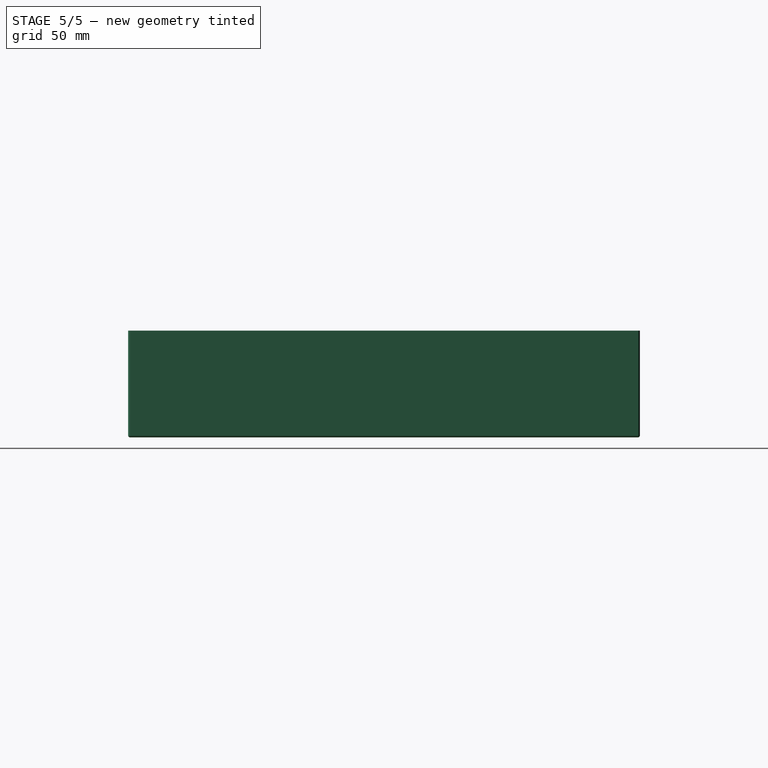
[diagram: stage 5 of 5 — right view after this stage's code; geometry added in this stage tinted green]
FEATURE [Sketcher::SketchObject] Sketch
  FullyConstrained = true
  MapMode = 5
  Support = -> [XY_Plane001]
  sketch-geometry (4):
    g0: LineSegment StartX=-126 StartY=126 StartZ=0 EndX=126 EndY=126 EndZ=0
    g1: LineSegment StartX=126 StartY=126 StartZ=0 EndX=126 EndY=-126 EndZ=0
    g2: LineSegment StartX=126 StartY=-126 StartZ=0 EndX=-126 EndY=-126 EndZ=0
    g3: LineSegment StartX=-126 StartY=-126 StartZ=0 EndX=-126 EndY=126 EndZ=0
  constraints (10):
    c: Coincident(g0,g1)
    c: Coincident(g1,g2)
    c: Coincident(g2,g3)
    c: Coincident(g3,g0)
    c: Horizontal(g2)
    c: Vertical(g1)
    c: Symmetric(g0,g0,g-2)
    c: Symmetric(g0,g2,g-1)
    c: DistanceX(g0,g0) = 252
    c: Equal(g0,g1)
FEATURE [PartDesign::Pad] Pad
  Direction = (0,0,1)
  Length = 52
  Length2 = 10
  Profile = -> Sketch
  ReferenceAxis = -> Sketch [N_Axis]
  Type = 0
FEATURE [PartDesign::Thickness] Thickness
  Base = -> Pad [Face6]
  BaseFeature = -> Pad
  Intersection = false
  Join = 0
  Mode = 0
  SupportTransform = false
  Value = 1
FEATURE [PartDesign::Plane] DatumPlane
  Length = 60
  MapMode = 5
  Placement = pos=(0,0,-1) rot=(1,0,0;3.14159rad)
  ResizeMode = 0
  Support = -> [Thickness001]
  Width = 60
FEATURE [Sketcher::SketchObject] Sketch002
  FullyConstrained = false
  MapMode = 5
  Placement = pos=(0,0,-1) rot=(1,0,0;3.14159rad)
  Support = -> [DatumPlane]
  sketch-geometry (16):
    g0: ArcOfCircle CenterX=0 CenterY=47.5 CenterZ=0 NormalX=0 NormalY=0 NormalZ=1 AngleXU=0 Radius=15.8533 StartAngle=0 EndAngle=3.14159
    g1: ArcOfCircle CenterX=0 CenterY=35.9134 CenterZ=0 NormalX=0 NormalY=0 NormalZ=1 AngleXU=0 Radius=15.8533 StartAngle=3.14159 EndAngle=6.28319
    g2: LineSegment StartX=-15.8533 StartY=47.5 StartZ=0 EndX=-15.8533 EndY=35.9134 EndZ=0
    g3: LineSegment StartX=15.8533 StartY=35.9134 StartZ=0 EndX=15.8533 EndY=47.5 EndZ=0
    g4: ArcOfCircle CenterX=0 CenterY=-35.9134 CenterZ=0 NormalX=0 NormalY=0 NormalZ=1 AngleXU=0 Radius=15.8533 StartAngle=0 EndAngle=3.14159
    g5: ArcOfCircle CenterX=0 CenterY=-47.5 CenterZ=0 NormalX=0 NormalY=0 NormalZ=1 AngleXU=0 Radius=15.8533 StartAngle=3.14159 EndAngle=6.28319
    g6: LineSegment StartX=-15.8533 StartY=-35.9134 StartZ=0 EndX=-15.8533 EndY=-47.5 EndZ=0
    g7: LineSegment StartX=15.8533 StartY=-47.5 StartZ=0 EndX=15.8533 EndY=-35.9134 EndZ=0
    g8: ArcOfCircle CenterX=-35 CenterY=0 CenterZ=0 NormalX=0 NormalY=0 NormalZ=1 AngleXU=0 Radius=15.8533 StartAngle=1.5708 EndAngle=4.71239
    g9: ArcOfCircle CenterX=-22.8752 CenterY=-2e-16 CenterZ=0 NormalX=0 NormalY=0 NormalZ=1 AngleXU=0 Radius=15.8533 StartAngle=4.71239 EndAngle=7.85398
    g10: LineSegment StartX=-35 StartY=-15.8533 StartZ=0 EndX=-22.8752 EndY=-15.8533 EndZ=0
    g11: LineSegment StartX=-22.8752 StartY=15.8533 StartZ=0 EndX=-35 EndY=15.8533 EndZ=0
    g12: ArcOfCircle CenterX=22.8752 CenterY=-2e-16 CenterZ=0 NormalX=0 NormalY=0 NormalZ=1 AngleXU=0 Radius=15.8533 StartAngle=1.5708 EndAngle=4.71239
    g13: ArcOfCircle CenterX=35 CenterY=0 CenterZ=0 NormalX=0 NormalY=0 NormalZ=1 AngleXU=0 Radius=15.8533 StartAngle=4.71239 EndAngle=7.85398
    g14: LineSegment StartX=22.8752 StartY=-15.8533 StartZ=0 EndX=35 EndY=-15.8533 EndZ=0
    g15: LineSegment StartX=35 StartY=15.8533 StartZ=0 EndX=22.8752 EndY=15.8533 EndZ=0
  constraints (35):
    c: Tangent(g0,g2) = -1.5708
    c: Tangent(g2,g1) = -1.5708
    c: Tangent(g1,g3) = -1.5708
    c: Tangent(g3,g0) = -1.5708
    c: Equal(g0,g1)
    c: PointOnObject(g0,g-2)
    c: PointOnObject(g1,g-2)
    c: Tangent(g4,g6) = -1.5708
    c: Tangent(g6,g5) = -1.5708
    c: Tangent(g5,g7) = -1.5708
    c: Tangent(g7,g4) = -1.5708
    c: Equal(g4,g5)
    c: PointOnObject(g5,g-2)
    c: Tangent(g8,g10) = -1.5708
    c: Tangent(g10,g9) = -1.5708
    c: Tangent(g9,g11) = -1.5708
    c: Tangent(g11,g8) = -1.5708
    c: Equal(g8,g9)
    c: PointOnObject(g8,g-1)
    c: Horizontal(g10)
    c: Tangent(g12,g14) = -1.5708
    c: Tangent(g14,g13) = -1.5708
    c: Tangent(g13,g15) = -1.5708
    c: Tangent(g15,g12) = -1.5708
    c: Equal(g12,g13)
    c: PointOnObject(g13,g-1)
    c: Equal(g11,g15)
    c: Equal(g2,g6)
    c: Equal(g4,g1)
    c: Equal(g9,g12)
    c: Symmetric(g1,g4,g-1)
    c: Symmetric(g9,g12,g-2)
    c: DistanceY(g5,g0) = 95
    c: DistanceX(g8,g13) = 70
    c: Equal(g1,g9)
FEATURE [Sketcher::SketchObject] Sketch003
  FullyConstrained = true
  MapMode = 5
  Placement = pos=(0,0,-1) rot=(1,0,0;3.14159rad)
  Support = -> [DatumPlane]
  sketch-geometry (4):
    g0: LineSegment StartX=-34 StartY=47 StartZ=0 EndX=34 EndY=47 EndZ=0
    g1: LineSegment StartX=34 StartY=47 StartZ=0 EndX=34 EndY=-47 EndZ=0
    g2: LineSegment StartX=34 StartY=-47 StartZ=0 EndX=-34 EndY=-47 EndZ=0
    g3: LineSegment StartX=-34 StartY=-47 StartZ=0 EndX=-34 EndY=47 EndZ=0
  constraints (10):
    c: Coincident(g0,g1)
    c: Coincident(g1,g2)
    c: Coincident(g2,g3)
    c: Coincident(g3,g0)
    c: Horizontal(g2)
    c: Vertical(g1)
    c: Symmetric(g0,g0,g-2)
    c: Symmetric(g2,g0,g-1)
    c: DistanceX(g0,g0) = 68
    c: DistanceY(g3,g3) = 94
FEATURE [PartDesign::Pad] Pad002
  BaseFeature = -> Thickness001
  Direction = (0,0,-1)
  Length = 2
  Length2 = 10
  Profile = -> Sketch003
  ReferenceAxis = -> Sketch003 [N_Axis]
  Type = 0
FEATURE [PartDesign::Pocket] Pocket
  BaseFeature = -> Pad002
  Direction = (0,0,1)
  Length = 5
  Length2 = 5
  Midplane = true
  Profile = -> Sketch002
  ReferenceAxis = -> Sketch002 [N_Axis]
  Type = 1
FEATURE [PartDesign::Body] Body001  label="Large"
  Group = -> [Sketch001,Pad001,Thickness001,DatumPlane,Pad002,Sketch002,Pocket,Sketch003]
  Origin = -> Origin003
  Placement = pos=(0,-214,0) rot=(0,0,1;0rad)
  Tip = -> Pocket
FEATURE [PartDesign::FeatureBase] Clone
  BaseFeature = -> Body001
FEATURE [PartDesign::FeatureBase] Clone001
  BaseFeature = -> Body001
FEATURE [PartDesign::Body] Body003
  BaseFeature = -> Body001
  Group = -> [Clone001]
  Origin = -> Origin005
  Placement = pos=(70,0,0) rot=(0,0,1;0rad)
  Tip = -> Clone001
FEATURE [PartDesign::Boolean] Boolean
  BaseFeature = -> Clone
  Group = -> [Body003]
  Type = 0
FEATURE [PartDesign::Body] Body002  label="LargeDouble"
  BaseFeature = -> Body001
  Group = -> [Clone,Boolean]
  Origin = -> Origin004
  Placement = pos=(-90,77,2) rot=(0,0,1;0rad)
  Tip = -> Boolean
FEATURE [App::Part] Part001  label="For Cards"
  Group = -> [Body001,Body002]
  Origin = -> Origin002
FEATURE [PartDesign::FeatureBase] Clone002
  BaseFeature = -> Body002
  Placement = pos=(-90,77,13) rot=(0,0,1;0rad)
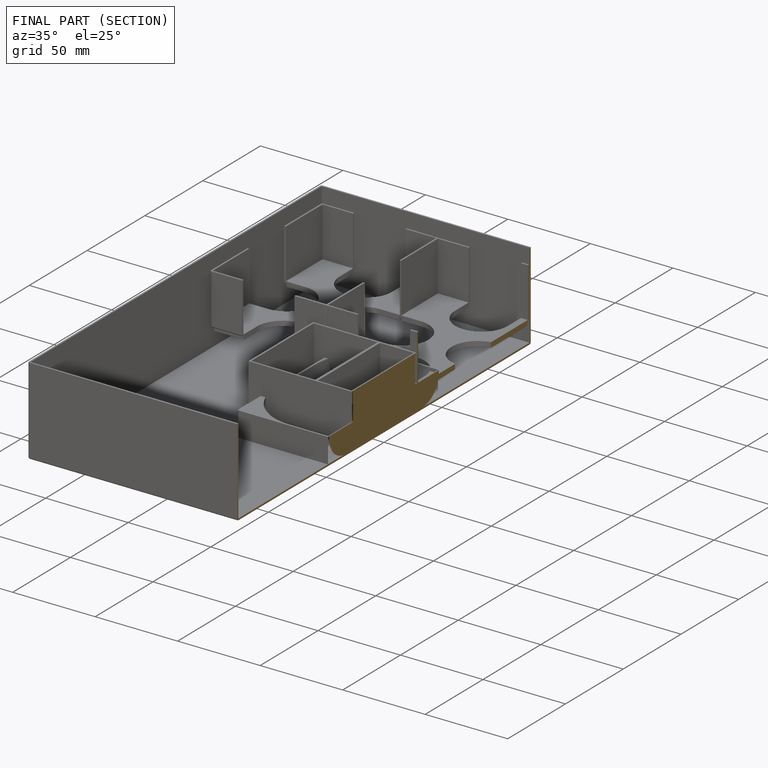
[diagram: finished part — half-section view (interior)]
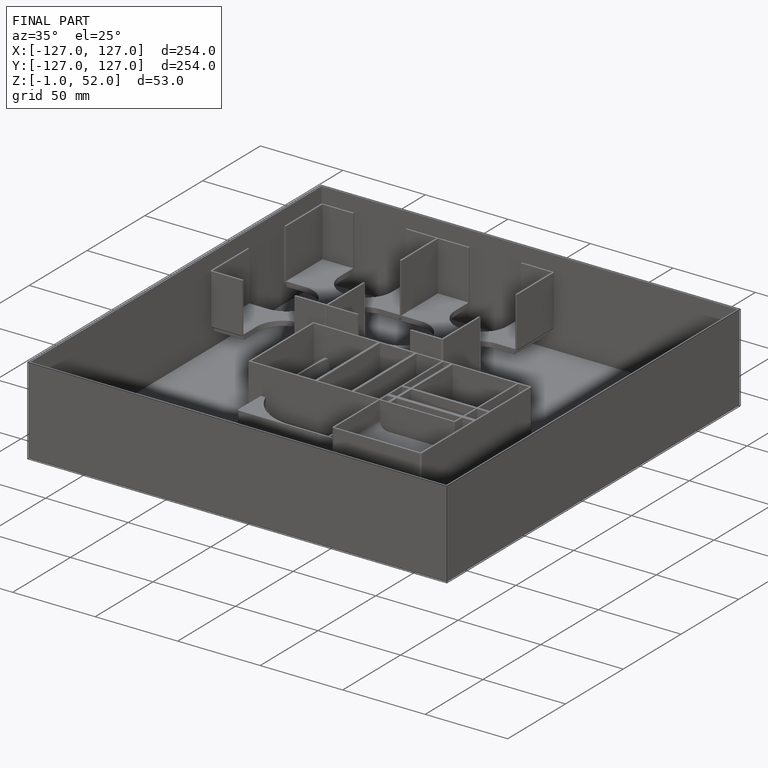
[diagram: finished part — iso view with bounding-box wireframe]
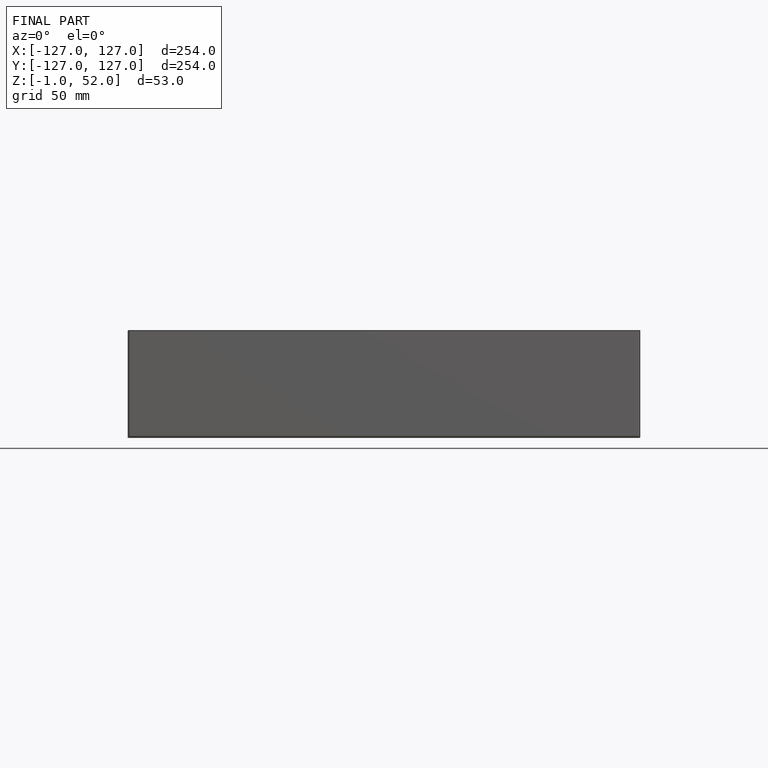
[diagram: finished part — front view with bounding-box wireframe]
